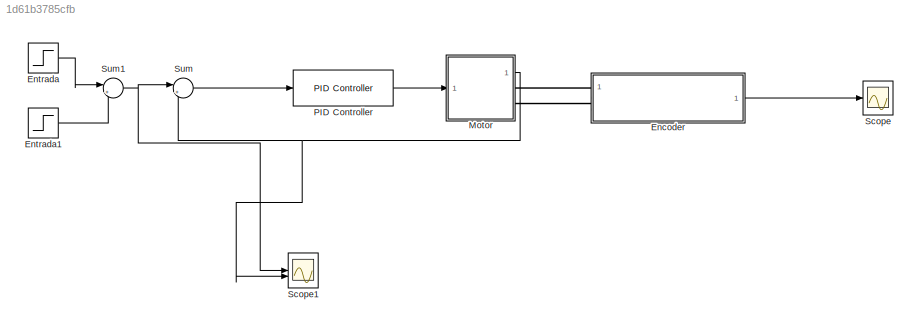
MODEL slx_1d61b3785cfb
KIND model
CONFIG AbsTol = auto
CONFIG EnableMultiTasking = off
CONFIG FixedStep = auto
CONFIG MaxStep = 0.001
CONFIG MinStep = auto
CONFIG RelTol = 1e-3
CONFIG SampleTimeConstraint = Unconstrained
CONFIG SolverName = VariableStepAuto
CONFIG StartTime = 0.0
CONFIG StopTime = 10
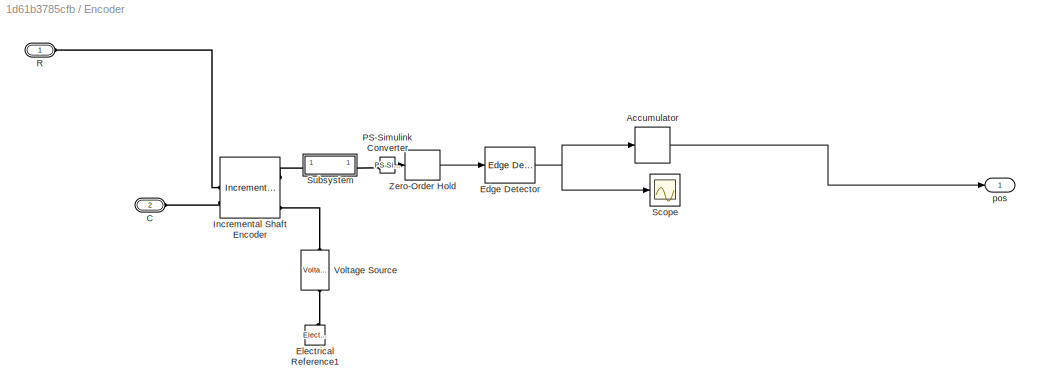
BLOCK [SubSystem] Encoder
BLOCK [DiscreteIntegrator] Encoder/Accumulator
  ICPrevOutput = DiscIntNeverNeededParam
  ICPrevScaledInput = DiscIntNeverNeededParam
  InitialConditionSetting = Auto
  IntegratorMethod = Accumulation: Forward Euler
  SampleTime = -1
  gainval = 1/(30) * 2*pi
BLOCK [PMIOPort] Encoder/C
  Port = 2
  Side = Left
BLOCK [Reference] Encoder/Edge Detector  REF=spsEdgeDetectorLib/Edge Detector
  LibrarySourceBlock = sps_lib/Control/Edge Detector
  SourceBlock = spsEdgeDetectorLib/Edge Detector
  SourceType = Edge Detector
BLOCK [Reference] Encoder/Electrical Reference1  REF=fl_lib/Electrical/Electrical Elements/Electrical Reference
  NameLocation = right
  SourceBlock = fl_lib/Electrical/Electrical Elements/Electrical Reference
  SourceType = Electrical Reference
BLOCK [Reference] Encoder/Incremental Shaft Encoder  REF=ee_lib/Sensors &
Transducers/Incremental Shaft
Encoder
  SourceBlock = ee_lib/Sensors &\nTransducers/Incremental Shaft\nEncoder
  SourceType = Incremental Shaft\nEncoder
BLOCK [Reference] Encoder/PS-Simulink Converter  REF=nesl_utility/PS-Simulink
Converter
  SourceBlock = nesl_utility/PS-Simulink\nConverter
  SourceType = PS-Simulink\nConverter
BLOCK [PMIOPort] Encoder/R
  Side = Left
BLOCK [Scope] Encoder/Scope
  ActiveDisplayYMaximum = 1
  ActiveDisplayYMinimum = -1
  DataLoggingVariableName = ScopeData3
  Floating = off
  GraphicalSettings = {"Style":{"BackgroundColor":[0.12941176470588237,0.12941176470588237,0.12941176470588237],"AxesColor":[0.07058823529411765,0.07058823529411765,0.07058823529411765],"LabelsColor":[0.8509803921568627,0.8509803921568627,0.8509803921568627],"PreserveColors":false,"Visible":[true],"LineStyle":["-"],"LineWidth":[1.5],"BarWidth":[0.9],"LineColor":["auto"],"LineFaceAlpha":[1],"LineEdgeAlpha":[1],"Marker":...<+1895ch>
  MultipleDisplayCache = [{"MaxYLimMag":1,"MaxYLimReal":1,"MinYLimMag":0,"MinYLimReal":-1,"PlotAsMagnitudePhase":false,"ShowGrid":true,"ShowLegend":false,"Title":"%<SignalLabel>","YLabel":""}]
  NumInputPorts = 1
  ScopeFrameLocation = window
  WasSavedAsWebScope = on
  WindowPosition = [476.000000,466.000000,891.000000,235.000000,]
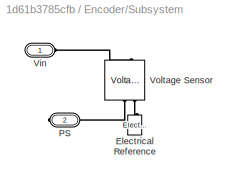
BLOCK [SubSystem] Encoder/Subsystem
  NameLocation = right
BLOCK [Reference] Encoder/Subsystem/Electrical Reference  REF=fl_lib/Electrical/Electrical Elements/Electrical Reference
  NameLocation = right
  SourceBlock = fl_lib/Electrical/Electrical Elements/Electrical Reference
  SourceType = Electrical Reference
BLOCK [PMIOPort] Encoder/Subsystem/PS
  NameLocation = top
  Port = 2
  Side = Right
BLOCK [PMIOPort] Encoder/Subsystem/Vin
  Side = Left
BLOCK [Reference] Encoder/Subsystem/Voltage Sensor  REF=fl_lib/Electrical/Electrical Sensors/Voltage Sensor
  LibrarySourceBlock = ee_lib/Sensors &\nTransducers/Voltage Sensor
  NameLocation = right
  SourceBlock = fl_lib/Electrical/Electrical Sensors/Voltage Sensor
  SourceType = Voltage Sensor
BLOCK [Reference] Encoder/Voltage Source  REF=ee_lib/Sources/Voltage Source
  NameLocation = right
  SourceBlock = ee_lib/Sources/Voltage Source
  SourceType = Voltage Source
BLOCK [ZeroOrderHold] Encoder/Zero-Order Hold
  SampleTime = -1
BLOCK [Outport] Encoder/pos
BLOCK [Step] Entrada
  After = 4
  SampleTime = 0
BLOCK [Step] Entrada1
  After = -2
  SampleTime = 0
  Time = 4
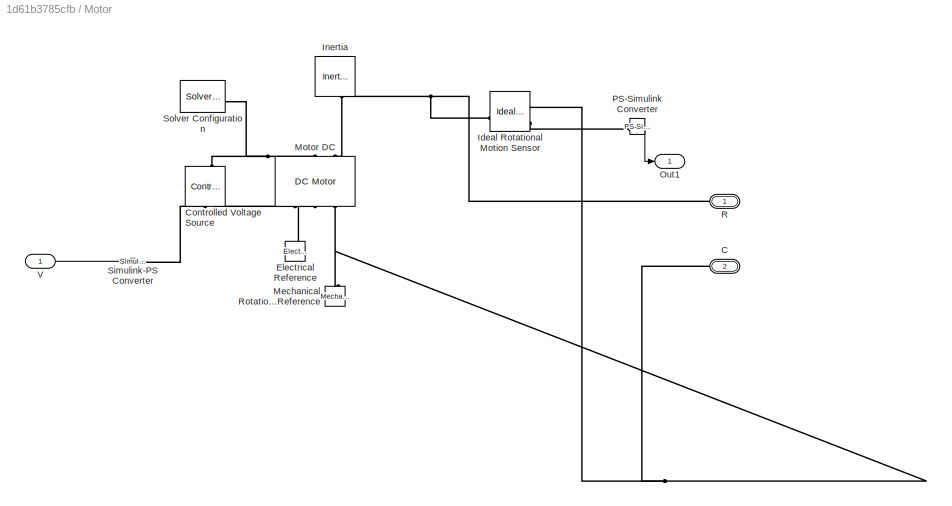
BLOCK [SubSystem] Motor
BLOCK [PMIOPort] Motor/C
  Port = 2
  Side = Right
BLOCK [Reference] Motor/Controlled Voltage Source  REF=fl_lib/Electrical/Electrical Sources/Controlled Voltage
Source
  NameLocation = right
  SourceBlock = fl_lib/Electrical/Electrical Sources/Controlled Voltage\nSource
  SourceType = Controlled Voltage\nSource
BLOCK [Reference] Motor/Electrical Reference  REF=fl_lib/Electrical/Electrical Elements/Electrical Reference
  NameLocation = right
  SourceBlock = fl_lib/Electrical/Electrical Elements/Electrical Reference
  SourceType = Electrical Reference
BLOCK [Reference] Motor/Ideal Rotational Motion Sensor  REF=fl_lib/Mechanical/Mechanical Sensors/Ideal Rotational
Motion Sensor
  SourceBlock = fl_lib/Mechanical/Mechanical Sensors/Ideal Rotational\nMotion Sensor
  SourceType = Ideal Rotational\nMotion Sensor
BLOCK [Reference] Motor/Inertia  REF=fl_lib/Mechanical/Rotational Elements/Inertia
  NameLocation = left
  SourceBlock = fl_lib/Mechanical/Rotational Elements/Inertia
  SourceType = Inertia
BLOCK [Reference] Motor/Mechanical Rotational Reference  REF=fl_lib/Mechanical/Rotational Elements/Mechanical
Rotational Reference
  NameLocation = right
  SourceBlock = fl_lib/Mechanical/Rotational Elements/Mechanical\nRotational Reference
  SourceType = Mechanical\nRotational Reference
BLOCK [Reference] Motor/Motor DC  REF=ee_lib/Electromechanical/Brushed Motors/DC Motor
  NameLocation = right
  SourceBlock = ee_lib/Electromechanical/Brushed Motors/DC Motor
  SourceType = DC Motor
BLOCK [Outport] Motor/Out1
BLOCK [Reference] Motor/PS-Simulink Converter  REF=nesl_utility/PS-Simulink
Converter
  SourceBlock = nesl_utility/PS-Simulink\nConverter
  SourceType = PS-Simulink\nConverter
BLOCK [PMIOPort] Motor/R
  Side = Right
BLOCK [Reference] Motor/Simulink-PS Converter  REF=nesl_utility/Simulink-PS
Converter
  SourceBlock = nesl_utility/Simulink-PS\nConverter
  SourceType = Simulink-PS\nConverter
BLOCK [Reference] Motor/Solver Configuration  REF=nesl_utility/Solver
Configuration
  SourceBlock = nesl_utility/Solver\nConfiguration
  SourceType = Solver\nConfiguration
BLOCK [Inport] Motor/V
BLOCK [Reference] PID Controller  REF=slpidlib/PID Controller
  LibrarySourceBlock = simulink/Continuous/PID Controller
  SourceBlock = slpidlib/PID Controller
  SourceType = PID 1dof
BLOCK [Scope] Scope
  ActiveDisplayYMaximum = 13.194689145077129
  ActiveDisplayYMinimum = -1.4660765716752364
  Floating = off
  GraphicalSettings = {"Style":{"BackgroundColor":[0.12941176470588237,0.12941176470588237,0.12941176470588237],"AxesColor":[0.07058823529411765,0.07058823529411765,0.07058823529411765],"LabelsColor":[0.8509803921568627,0.8509803921568627,0.8509803921568627],"PreserveColors":false,"Visible":[true],"LineStyle":["-"],"LineWidth":[1.5],"BarWidth":[0.9],"LineColor":["auto"],"LineFaceAlpha":[1],"LineEdgeAlpha":[1],"Marker":...<+1889ch>
  MultipleDisplayCache = [{"MaxYLimMag":13.194689145077129,"MaxYLimReal":13.194689145077129,"MinYLimMag":0,"MinYLimReal":-1.4660765716752364,"PlotAsMagnitudePhase":false,"ShowGrid":true,"ShowLegend":false,"Title":"%<SignalLabel>","YLabel":""}]
  NumInputPorts = 1
  ScopeFrameLocation = window
  Visible = on
  WasSavedAsWebScope = on
  WindowPosition = [1039.000000,277.000000,560.000000,420.000000,]
BLOCK [Scope] Scope1
  ActiveDisplayYMaximum = 10.61186917199163
  ActiveDisplayYMinimum = -1.1790965746657365
  DataLoggingVariableName = ScopeData1
  Floating = off
  GraphicalSettings = {"Style":{"BackgroundColor":[0.12941176470588237,0.12941176470588237,0.12941176470588237],"AxesColor":[0.07058823529411765,0.07058823529411765,0.07058823529411765],"LabelsColor":[0.8509803921568627,0.8509803921568627,0.8509803921568627],"PreserveColors":false,"Visible":[true,true],"LineStyle":["-","-"],"LineWidth":[1.5,1.5],"BarWidth":[0.9,0.9],"LineColor":["auto","auto"],"LineFaceAlpha":[1,1],"Li...<+1992ch>
  MultipleDisplayCache = [{"MaxYLimMag":10.61186917199163,"MaxYLimReal":10.61186917199163,"MinYLimMag":0,"MinYLimReal":-1.1790965746657365,"PlotAsMagnitudePhase":false,"ShowGrid":true,"ShowLegend":false,"Title":"%<SignalLabel>","YLabel":""}]
  NumInputPorts = 2
  ScopeFrameLocation = window
  WasSavedAsWebScope = on
  WindowPosition = [819.000000,303.000000,560.000000,420.000000,]
BLOCK [Sum] Sum
  Inputs = |+-
BLOCK [Sum] Sum1
  Inputs = |++
LINE Encoder/Accumulator:1 -> Encoder/pos:1
NET Encoder/Edge Detector:1 -> Encoder/Accumulator:1, Encoder/Scope:1
LINE Encoder/PS-Simulink Converter:1 -> Encoder/Zero-Order Hold:1
LINE Encoder/Zero-Order Hold:1 -> Encoder/Edge Detector:1
LINE Encoder:1 -> Scope:1
LINE Entrada1:1 -> Sum1:2
LINE Entrada:1 -> Sum1:1
LINE Motor/PS-Simulink Converter:1 -> Motor/Out1:1
LINE Motor/V:1 -> Motor/Simulink-PS Converter:1
NET Motor:1 -> Scope1:2, Sum:2
LINE PID Controller:1 -> Motor:1
NET Sum1:1 -> Scope1:1, Sum:1
LINE Sum:1 -> PID Controller:1
PLINE Encoder/C:RConn1 -- Encoder/Incremental Shaft Encoder:LConn2
PLINE Encoder/Electrical Reference1:LConn1 -- Encoder/Voltage Source:RConn1
PLINE Encoder/Incremental Shaft Encoder:LConn1 -- Encoder/R:RConn1
PLINE Encoder/Incremental Shaft Encoder:RConn1 -- Encoder/Subsystem:LConn1
PLINE Encoder/Incremental Shaft Encoder:RConn4 -- Encoder/Voltage Source:LConn1
PLINE Encoder/PS-Simulink Converter:LConn1 -- Encoder/Subsystem:RConn1
PLINE Encoder/Subsystem/Electrical Reference:LConn1 -- Encoder/Subsystem/Voltage Sensor:RConn2
PLINE Encoder/Subsystem/PS:RConn1 -- Encoder/Subsystem/Voltage Sensor:RConn1
PLINE Encoder/Subsystem/Vin:RConn1 -- Encoder/Subsystem/Voltage Sensor:LConn1
PLINE Encoder:LConn1 -- Motor:RConn1
PLINE Encoder:LConn2 -- Motor:RConn2
PNET net1: Motor/C:RConn1 -- Motor/Ideal Rotational Motion Sensor:RConn1 -- Motor/Mechanical Rotational Reference:LConn1 -- Motor/Motor DC:RConn2
PNET net2: Motor/Controlled Voltage Source:LConn1 -- Motor/Motor DC:LConn1 -- Motor/Solver Configuration:RConn1
PLINE Motor/Controlled Voltage Source:RConn1 -- Motor/Simulink-PS Converter:RConn1
PNET net3: Motor/Controlled Voltage Source:RConn2 -- Motor/Electrical Reference:LConn1 -- Motor/Motor DC:RConn1
PNET net4: Motor/Ideal Rotational Motion Sensor:LConn1 -- Motor/Inertia:LConn1 -- Motor/Motor DC:LConn2 -- Motor/R:RConn1
PLINE Motor/Ideal Rotational Motion Sensor:RConn3 -- Motor/PS-Simulink Converter:LConn1
note: NET lines group one-source signal fan-out (src -> all destinations, sorted); 1:1 wires keep LINE; PNET lines group multi-terminal physical nets as a canonical sorted terminal list (undirected conserving connections); 2-terminal nets keep the pairwise PLINE form
